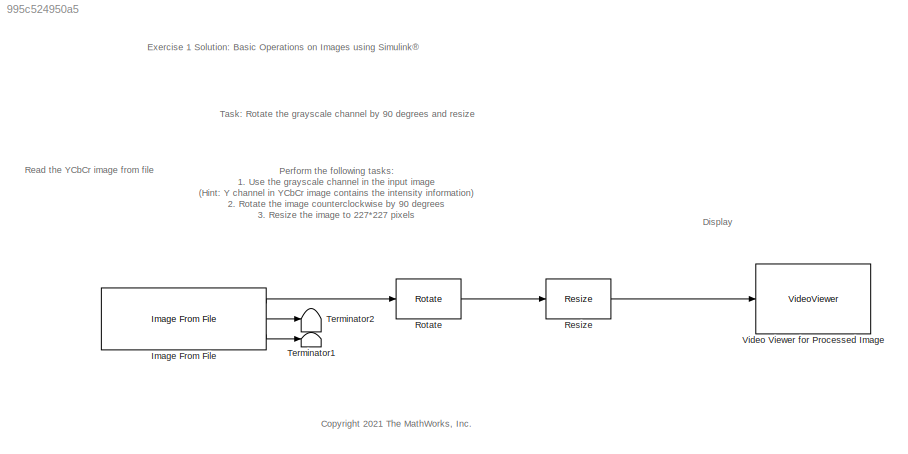
MODEL slx_995c524950a5
KIND model
CONFIG AbsTol = auto
CONFIG EnableMultiTasking = off
CONFIG FixedStep = auto
CONFIG MaxStep = auto
CONFIG MinStep = auto
CONFIG RelTol = 1e-3
CONFIG SampleTimeConstraint = Unconstrained
CONFIG SolverName = VariableStepAuto
CONFIG StartTime = 0.0
CONFIG StopTime = 10.0
BLOCK [Reference] Image From File  REF=visionsources/Image From File
  Ports = [0, 3]
  SourceBlock = visionsources/Image From File
  SourceProductBaseCode = VP
  SourceType = Image From File
  Tag = vipblks_nd
BLOCK [Reference] Resize  REF=visiongeotforms/Resize
  Ports = [1, 1]
  SourceBlock = visiongeotforms/Resize
  SourceProductBaseCode = VP
  SourceType = Resize
BLOCK [Reference] Rotate  REF=visiongeotforms/Rotate
  Ports = [1, 1]
  SourceBlock = visiongeotforms/Rotate
  SourceProductBaseCode = VP
  SourceType = Rotate
BLOCK [Terminator] Terminator1
BLOCK [Terminator] Terminator2
BLOCK [VideoViewer] Video Viewer for Processed Image
  FigPos = [2725 1237 802 628]
  Ports = [1]
  ScopeSpecificationString = vipscopes.VideoViewerScopeCfg('CurrentConfiguration', extmgr.ConfigurationSet(extmgr.Configuration('Core','General UI',true),extmgr.Configuration('Core','Source UI',true),extmgr.Configuration('Sources','WiredSimulink',true),extmgr.Configuration('Visuals','Video',true),extmgr.Configuration('Tools','Image Navigation Tools',true),extmgr.Configuration('Tools','Image Tool',true),extmgr.Configuration('T...<+77ch>
ANNOTATION (root): Exercise 1 Solution: Basic Operations on Images using Simulink ®
ANNOTATION (root): <copyright redacted>
ANNOTATION (root): Display
ANNOTATION (root): Perform the following tasks: 1. Use the grayscale channel in the input image (Hint: Y channel in YCbCr image contains the intensity information) 2. Rotate the image counterclockwise by 90 degrees 3. Resize the image to 227*227 pixels
ANNOTATION (root): Read the YCbCr image from file
ANNOTATION (root): Task: Rotate the grayscale channel by 90 degrees and resize
LINE Image From File:1 -> Rotate:1
LINE Image From File:2 -> Terminator2:1
LINE Image From File:3 -> Terminator1:1
LINE Resize:1 -> Video Viewer for Processed Image:1
LINE Rotate:1 -> Resize:1
